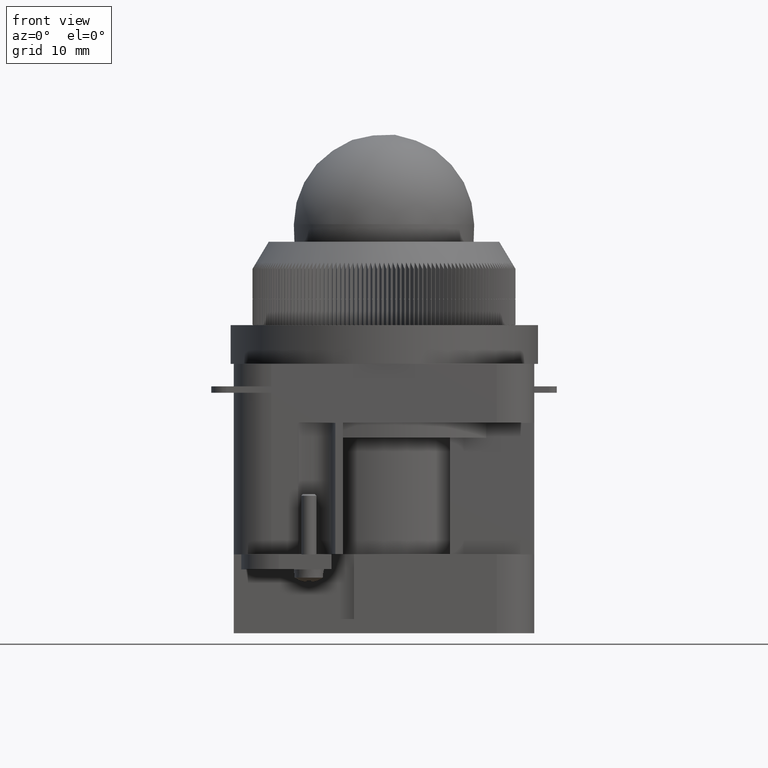
[diagram: clean part render]
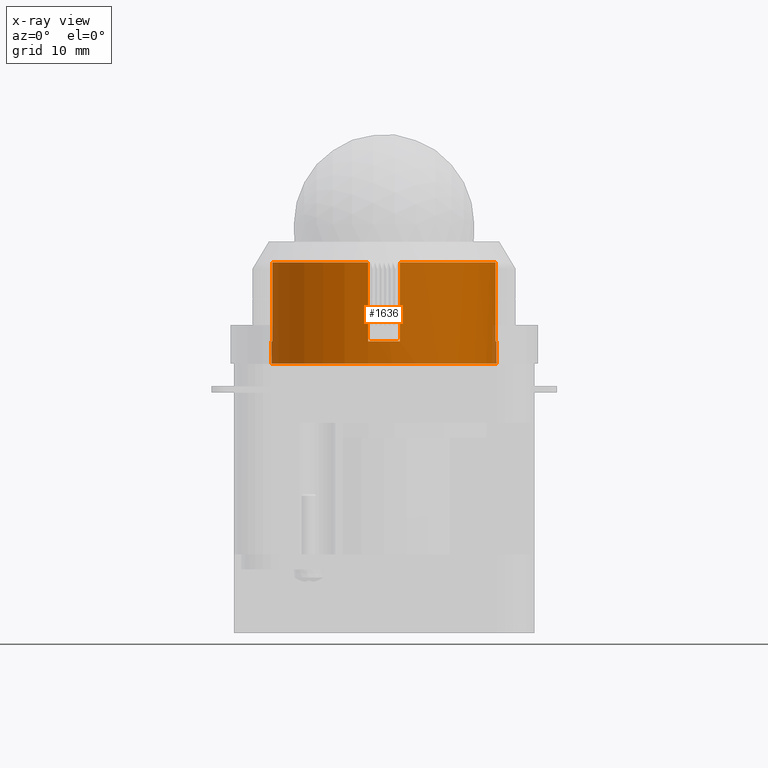
[diagram: x-ray — body ghosted, one internal face saturated and labeled with its STEP entity id]
A machine part, front view, then the same camera in x-ray: the body is ghosted and one INTERNAL B-rep face — a face not visible from any outside direction — is saturated and labeled: STEP entity #1636.
In plain terms, the highlighted cylindrical surface (bore or boss wall) has radius 15 mm, axis along (0, 0, 1).
Its self-contained STEP definition (entity closure, byte-faithful):
#1420=CARTESIAN_POINT('',(0.021129990508231,15.495986671444939,16.500000000000000));
#1421=VERTEX_POINT('',#1420);
#1441=CARTESIAN_POINT('',(-12.702586283971533,28.219702945924695,16.500000000000000));
#1442=VERTEX_POINT('',#1441);
#1443=CARTESIAN_POINT('',(-14.827586283971526,13.370986671444935,16.500000000000000));
#1444=DIRECTION('',(0.0,0.0,1.000000000000000));
#1445=DIRECTION('',(0.707106781186547,0.707106781186547,0.0));
#1446=AXIS2_PLACEMENT_3D('',#1443,#1444,#1445);
#1447=CIRCLE('',#1446,15.0);
#1448=EDGE_CURVE('',#1421,#1442,#1447,.T.);
#1479=CARTESIAN_POINT('',(-12.702586283971531,28.219702945924695,5.999999999999996));
#1480=VERTEX_POINT('',#1479);
#1481=CARTESIAN_POINT('',(-12.702586283971531,28.219702945924695,5.999999999999996));
#1482=DIRECTION('',(0.0,0.0,1.0));
#1483=VECTOR('',#1482,10.500000000000004);
#1484=LINE('',#1481,#1483);
#1485=EDGE_CURVE('',#1480,#1442,#1484,.T.);
#1499=CARTESIAN_POINT('',(-14.827586283971526,13.370986671444935,3.000000000000000));
#1500=DIRECTION('',(0.0,0.0,1.0));
#1501=DIRECTION('',(-1.0,0.0,0.0));
#1502=AXIS2_PLACEMENT_3D('',#1499,#1500,#1501);
#1503=CYLINDRICAL_SURFACE('',#1502,15.0);
#1504=CARTESIAN_POINT('',(0.172413716028474,13.370986671444937,3.000000000000000));
#1505=VERTEX_POINT('',#1504);
#1506=CARTESIAN_POINT('',(-14.827586283971526,13.370986671444935,3.000000000000000));
#1507=DIRECTION('',(0.0,0.0,-1.0));
#1508=DIRECTION('',(-1.0,0.0,0.0));
#1509=AXIS2_PLACEMENT_3D('',#1506,#1507,#1508);
#1510=CIRCLE('',#1509,15.0);
#1511=EDGE_CURVE('',#1505,#1505,#1510,.T.);
#1512=ORIENTED_EDGE('',*,*,#1511,.F.);
#1513=EDGE_LOOP('',(#1512));
#1514=FACE_OUTER_BOUND('',#1513,.T.);
#1515=ORIENTED_EDGE('',*,*,#1448,.F.);
#1516=CARTESIAN_POINT('',(0.021129990508231,15.495986671444939,5.999999999999992));
#1517=VERTEX_POINT('',#1516);
#1518=CARTESIAN_POINT('',(0.021129990508231,15.495986671444939,16.500000000000000));
#1519=DIRECTION('',(0.0,0.0,-1.0));
#1520=VECTOR('',#1519,10.500000000000007);
#1521=LINE('',#1518,#1520);
#1522=EDGE_CURVE('',#1421,#1517,#1521,.T.);
#1523=ORIENTED_EDGE('',*,*,#1522,.T.);
#1524=CARTESIAN_POINT('',(0.021129990508231,11.245986671444935,5.999999999999992));
#1525=VERTEX_POINT('',#1524);
#1526=CARTESIAN_POINT('',(-14.827586283971526,13.370986671444935,5.999999999999992));
#1527=DIRECTION('',(0.0,0.0,-1.0));
#1528=DIRECTION('',(-1.0,0.0,0.0));
#1529=AXIS2_PLACEMENT_3D('',#1526,#1527,#1528);
#1530=CIRCLE('',#1529,15.0);
#1531=EDGE_CURVE('',#1517,#1525,#1530,.T.);
#1532=ORIENTED_EDGE('',*,*,#1531,.T.);
#1533=CARTESIAN_POINT('',(0.021129990508231,11.245986671444934,16.500000000000000));
#1534=VERTEX_POINT('',#1533);
#1535=CARTESIAN_POINT('',(0.021129990508231,11.245986671444935,5.999999999999992));
#1536=DIRECTION('',(0.0,0.0,1.0));
#1537=VECTOR('',#1536,10.500000000000007);
#1538=LINE('',#1535,#1537);
#1539=EDGE_CURVE('',#1525,#1534,#1538,.T.);
#1540=ORIENTED_EDGE('',*,*,#1539,.T.);
#1541=CARTESIAN_POINT('',(-12.702586283971527,-1.477729603034823,16.500000000000000));
#1542=VERTEX_POINT('',#1541);
#1543=CARTESIAN_POINT('',(-14.827586283971526,13.370986671444935,16.500000000000000));
#1544=DIRECTION('',(0.0,0.0,1.000000000000000));
#1545=DIRECTION('',(0.707106781186547,-0.707106781186547,0.0));
#1546=AXIS2_PLACEMENT_3D('',#1543,#1544,#1545);
#1547=CIRCLE('',#1546,15.0);
#1548=EDGE_CURVE('',#1542,#1534,#1547,.T.);
#1549=ORIENTED_EDGE('',*,*,#1548,.F.);
#1550=CARTESIAN_POINT('',(-12.702586283971527,-1.477729603034823,5.999999999999992));
#1551=VERTEX_POINT('',#1550);
#1552=CARTESIAN_POINT('',(-12.702586283971527,-1.477729603034823,16.500000000000000));
#1553=DIRECTION('',(0.0,0.0,-1.0));
#1554=VECTOR('',#1553,10.500000000000007);
#1555=LINE('',#1552,#1554);
#1556=EDGE_CURVE('',#1542,#1551,#1555,.T.);
#1557=ORIENTED_EDGE('',*,*,#1556,.T.);
#1558=CARTESIAN_POINT('',(-16.952586283971524,-1.477729603034823,5.999999999999992));
#1559=VERTEX_POINT('',#1558);
#1560=CARTESIAN_POINT('',(-14.827586283971526,13.370986671444935,5.999999999999992));
#1561=DIRECTION('',(0.0,0.0,-1.0));
#1562=DIRECTION('',(-1.0,0.0,0.0));
#1563=AXIS2_PLACEMENT_3D('',#1560,#1561,#1562);
#1564=CIRCLE('',#1563,15.0);
#1565=EDGE_CURVE('',#1551,#1559,#1564,.T.);
#1566=ORIENTED_EDGE('',*,*,#1565,.T.);
#1567=CARTESIAN_POINT('',(-16.952586283971524,-1.477729603034821,16.500000000000000));
#1568=VERTEX_POINT('',#1567);
#1569=CARTESIAN_POINT('',(-16.952586283971524,-1.477729603034823,5.999999999999992));
#1570=DIRECTION('',(0.0,0.0,1.0));
#1571=VECTOR('',#1570,10.500000000000007);
#1572=LINE('',#1569,#1571);
#1573=EDGE_CURVE('',#1559,#1568,#1572,.T.);
#1574=ORIENTED_EDGE('',*,*,#1573,.T.);
#1575=CARTESIAN_POINT('',(-29.676302558451283,11.245986671444935,16.500000000000000));
#1576=VERTEX_POINT('',#1575);
#1577=CARTESIAN_POINT('',(-14.827586283971526,13.370986671444935,16.500000000000000));
#1578=DIRECTION('',(0.0,0.0,1.0));
#1579=DIRECTION('',(-0.707106781186547,-0.707106781186548,0.0));
#1580=AXIS2_PLACEMENT_3D('',#1577,#1578,#1579);
#1581=CIRCLE('',#1580,15.0);
#1582=EDGE_CURVE('',#1576,#1568,#1581,.T.);
#1583=ORIENTED_EDGE('',*,*,#1582,.F.);
#1584=CARTESIAN_POINT('',(-29.676302558451283,11.245986671444935,5.999999999999995));
#1585=VERTEX_POINT('',#1584);
#1586=CARTESIAN_POINT('',(-29.676302558451283,11.245986671444935,16.500000000000000));
#1587=DIRECTION('',(0.0,0.0,-1.0));
#1588=VECTOR('',#1587,10.500000000000005);
#1589=LINE('',#1586,#1588);
#1590=EDGE_CURVE('',#1576,#1585,#1589,.T.);
#1591=ORIENTED_EDGE('',*,*,#1590,.T.);
#1592=CARTESIAN_POINT('',(-29.676302558451280,15.495986671444939,5.999999999999995));
#1593=VERTEX_POINT('',#1592);
#1594=CARTESIAN_POINT('',(-14.827586283971526,13.370986671444935,5.999999999999995));
#1595=DIRECTION('',(0.0,0.0,-1.0));
#1596=DIRECTION('',(-1.0,0.0,0.0));
#1597=AXIS2_PLACEMENT_3D('',#1594,#1595,#1596);
#1598=CIRCLE('',#1597,15.0);
#1599=EDGE_CURVE('',#1585,#1593,#1598,.T.);
#1600=ORIENTED_EDGE('',*,*,#1599,.T.);
#1601=CARTESIAN_POINT('',(-29.676302558451280,15.495986671444939,16.500000000000000));
#1602=VERTEX_POINT('',#1601);
#1603=CARTESIAN_POINT('',(-29.676302558451280,15.495986671444939,5.999999999999995));
#1604=DIRECTION('',(0.0,0.0,1.0));
#1605=VECTOR('',#1604,10.500000000000005);
#1606=LINE('',#1603,#1605);
#1607=EDGE_CURVE('',#1593,#1602,#1606,.T.);
#1608=ORIENTED_EDGE('',*,*,#1607,.T.);
#1609=CARTESIAN_POINT('',(-16.952586283971527,28.219702945924688,16.500000000000000));
#1610=VERTEX_POINT('',#1609);
#1611=CARTESIAN_POINT('',(-14.827586283971526,13.370986671444935,16.500000000000000));
#1612=DIRECTION('',(0.0,0.0,1.0));
#1613=DIRECTION('',(-0.707106781186548,0.707106781186547,0.0));
#1614=AXIS2_PLACEMENT_3D('',#1611,#1612,#1613);
#1615=CIRCLE('',#1614,15.0);
#1616=EDGE_CURVE('',#1610,#1602,#1615,.T.);
#1617=ORIENTED_EDGE('',*,*,#1616,.F.);
#1618=CARTESIAN_POINT('',(-16.952586283971527,28.219702945924688,5.999999999999996));
#1619=VERTEX_POINT('',#1618);
#1620=CARTESIAN_POINT('',(-16.952586283971527,28.219702945924688,16.500000000000000));
#1621=DIRECTION('',(0.0,0.0,-1.0));
#1622=VECTOR('',#1621,10.500000000000004);
#1623=LINE('',#1620,#1622);
#1624=EDGE_CURVE('',#1610,#1619,#1623,.T.);
#1625=ORIENTED_EDGE('',*,*,#1624,.T.);
#1626=CARTESIAN_POINT('',(-14.827586283971526,13.370986671444935,5.999999999999996));
#1627=DIRECTION('',(0.0,0.0,-1.0));
#1628=DIRECTION('',(-1.0,0.0,0.0));
#1629=AXIS2_PLACEMENT_3D('',#1626,#1627,#1628);
#1630=CIRCLE('',#1629,15.0);
#1631=EDGE_CURVE('',#1619,#1480,#1630,.T.);
#1632=ORIENTED_EDGE('',*,*,#1631,.T.);
#1633=ORIENTED_EDGE('',*,*,#1485,.T.);
#1634=EDGE_LOOP('',(#1515,#1523,#1532,#1540,#1549,#1557,#1566,#1574,#1583,#1591,#1600,#1608,#1617,#1625,#1632,#1633));
#1635=FACE_BOUND('',#1634,.T.);
#1636=ADVANCED_FACE('',(#1514,#1635),#1503,.T.);